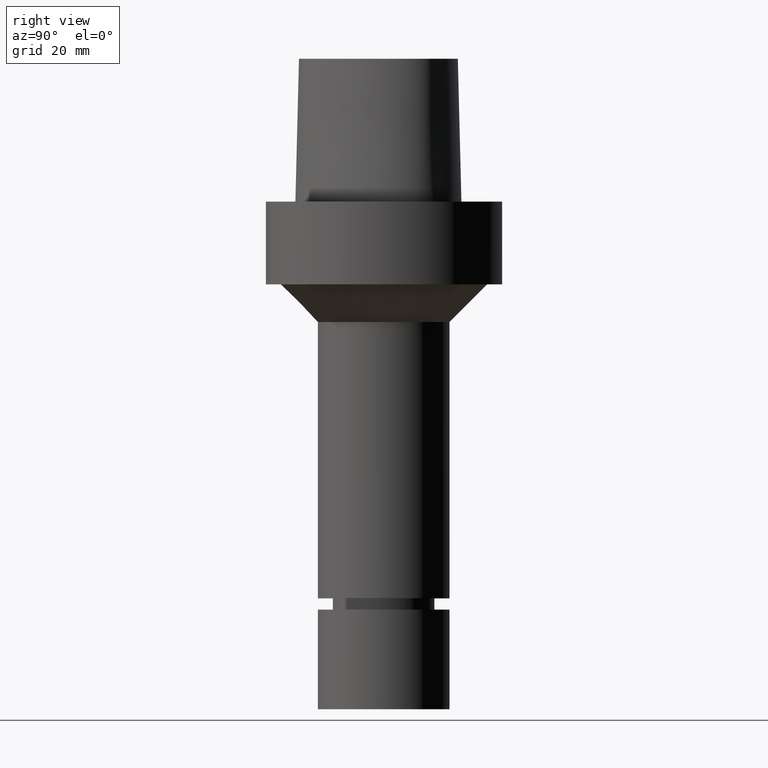
[diagram: clean part render]
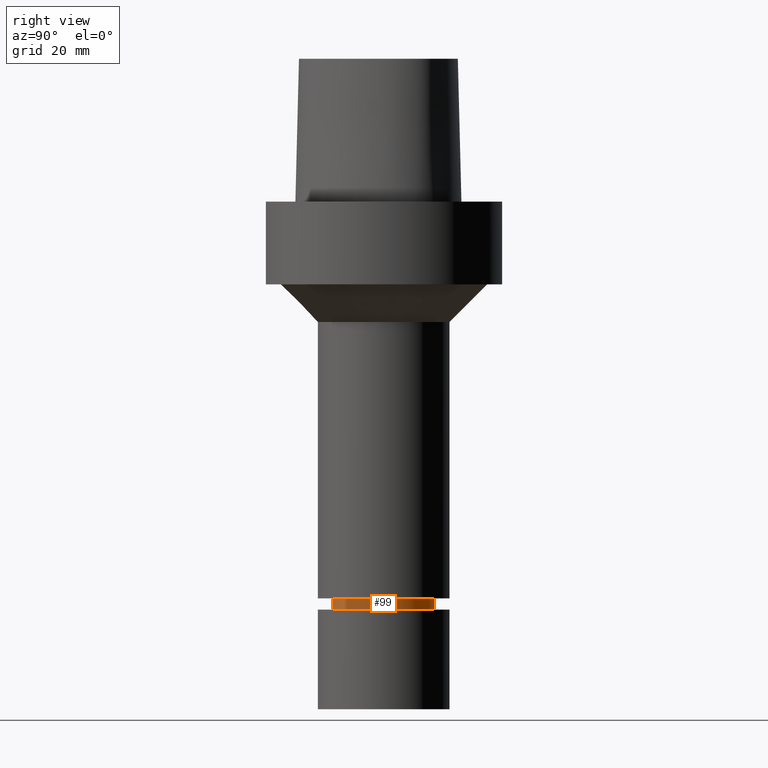
[diagram: same view with one face highlighted and labeled with its STEP entity id]
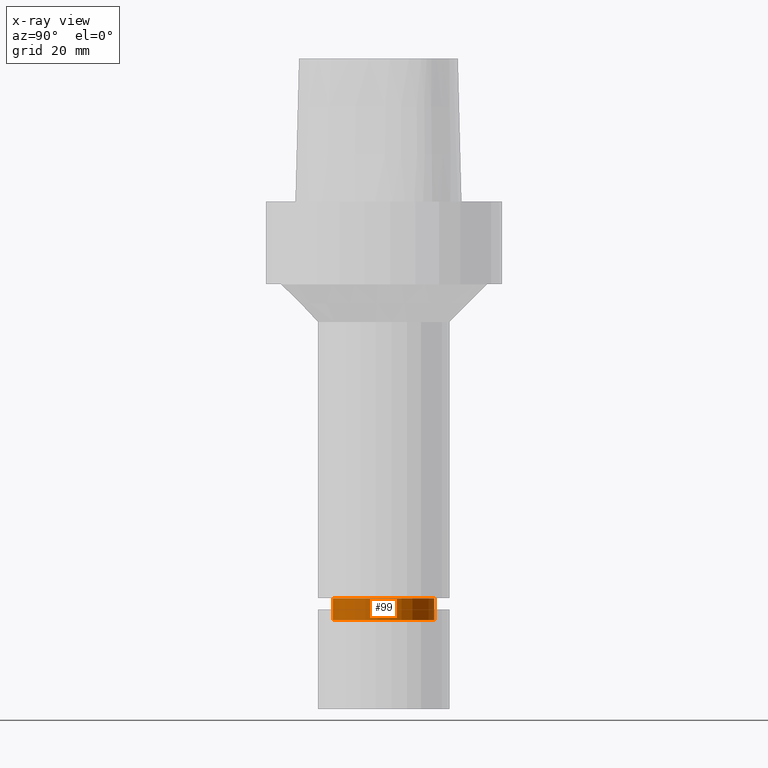
[diagram: x-ray of the same camera — body ghosted, the highlighted face saturated]
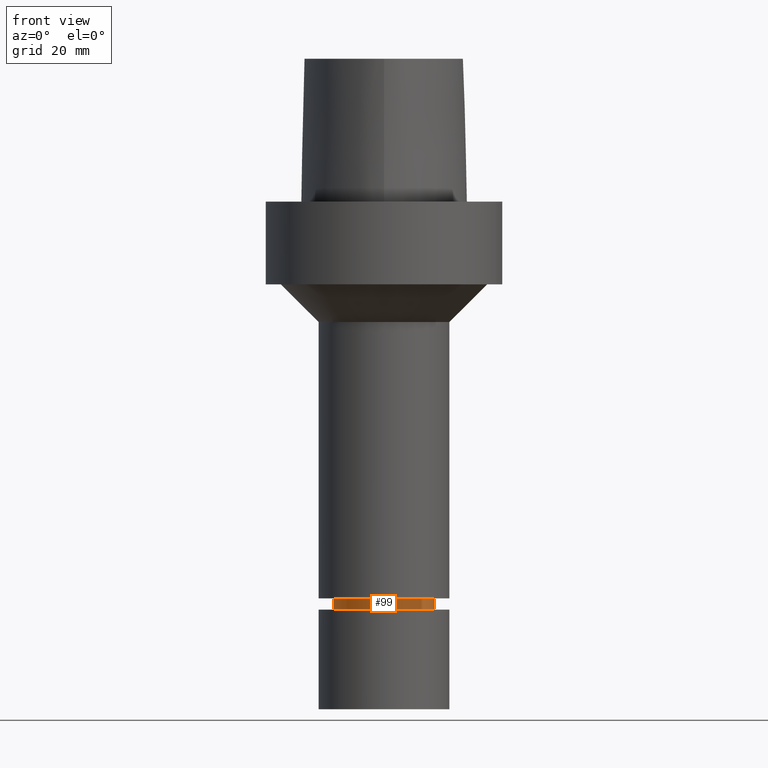
[diagram: same view with one face highlighted and labeled with its STEP entity id]
A machine part, right view. The second image highlights one B-rep face of the part: STEP entity #99.
The next image is the same camera in x-ray: the body ghosted, the highlighted face saturated — about 0% of this face is hidden behind the body in this view.
A second angle (front view) of the same face is appended — the face is thin or edge-on in the first view.
In plain terms, the highlighted cylindrical surface (bore or boss wall) has radius 13.5 mm, axis along (0, 0, -1).
Its self-contained STEP definition (entity closure, byte-faithful):
#99=ADVANCED_FACE('Unnamed[1]',(#230,#231),#232,.T.);
#138=EDGE_CURVE('Unnamed[1]',#290,#290,#291,.T.);
#148=EDGE_CURVE('Unnamed[1]',#305,#305,#306,.T.);
#230=FACE_BOUND('',#416,.T.);
#231=FACE_BOUND('',#417,.T.);
#232=CYLINDRICAL_SURFACE('',#418,13.4999999999956);
#290=VERTEX_POINT('',#574);
#291=CIRCLE('',#575,13.4999999999908);
#305=VERTEX_POINT('',#664);
#306=CIRCLE('',#665,13.5000000000005);
#416=EDGE_LOOP('',(#773));
#417=EDGE_LOOP('',(#774));
#418=AXIS2_PLACEMENT_3D('',#775,#776,#777);
#574=CARTESIAN_POINT('',(6.46001186550228E-015,13.4999999999908,-105.5));
#575=AXIS2_PLACEMENT_3D('',#839,#840,#841);
#664=CARTESIAN_POINT('',(6.81652644100301E-015,13.5000000000005,-111.322324865405));
#665=AXIS2_PLACEMENT_3D('',#856,#857,#858);
#773=ORIENTED_EDGE('',*,*,#148,.F.);
#774=ORIENTED_EDGE('',*,*,#138,.T.);
#775=CARTESIAN_POINT('',(6.63826915325264E-015,1.32765383065053E-014,-108.411162432703));
#776=DIRECTION('',(6.12323399573677E-017,1.22464679914735E-016,-1.0));
#777=DIRECTION('',(-1.23259516440783E-032,1.0,1.22464679914735E-016));
#839=CARTESIAN_POINT('',(6.46001186550228E-015,1.29200237310045E-014,-105.5));
#840=DIRECTION('',(6.12323399573677E-017,1.22464679914735E-016,-1.0));
#841=DIRECTION('',(-1.23259516440783E-032,1.0,1.22464679914735E-016));
#856=CARTESIAN_POINT('',(6.81652644100301E-015,1.3633052882006E-014,-111.322324865405));
#857=DIRECTION('',(6.12323399573677E-017,1.22464679914735E-016,-1.0));
#858=DIRECTION('',(-1.23259516440783E-032,1.0,1.22464679914735E-016));